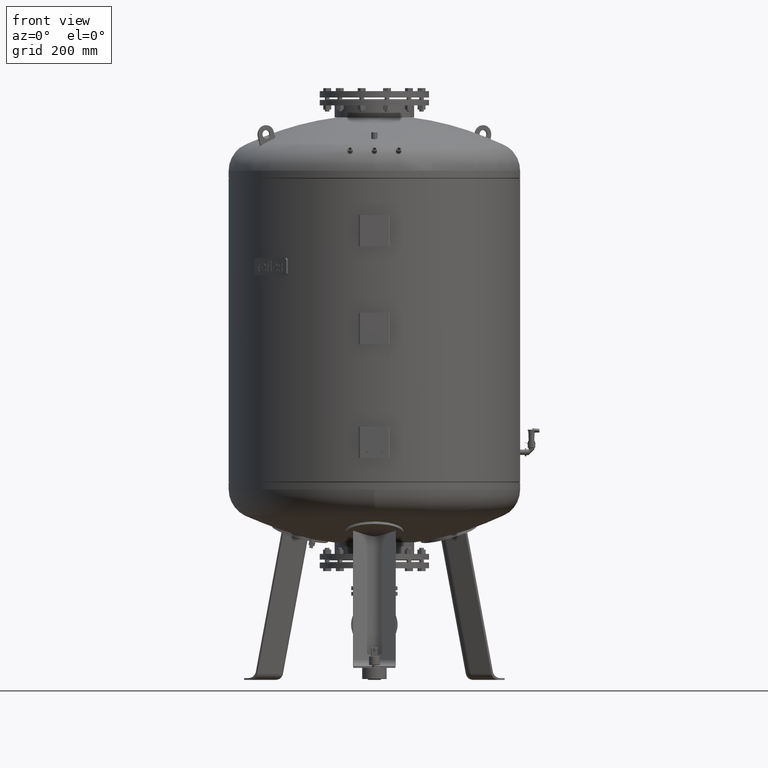
[diagram: clean part render]
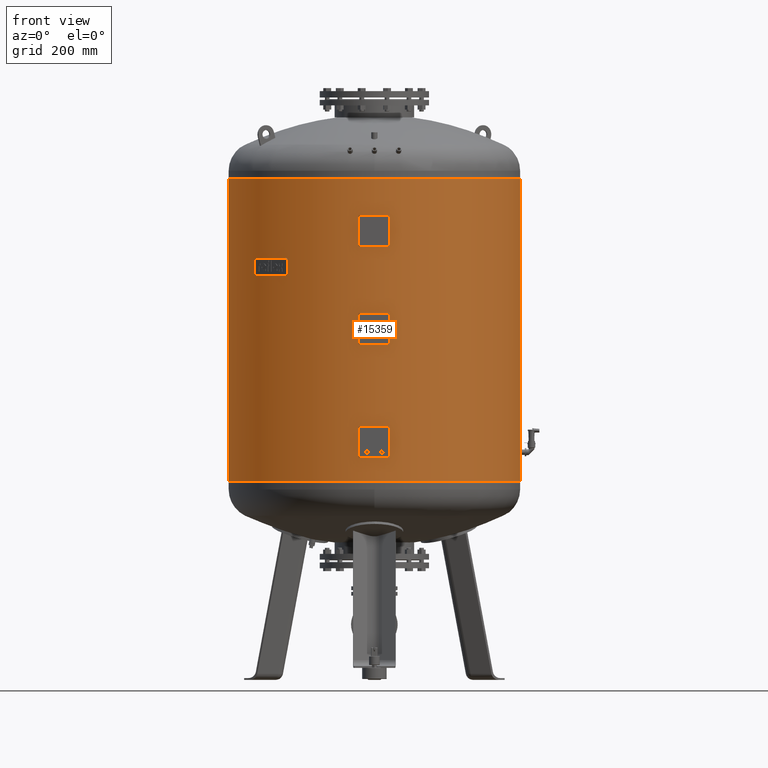
[diagram: same view with one face highlighted and labeled with its STEP entity id]
A machine part, front view. The second image highlights one B-rep face of the part: STEP entity #15359.
In plain terms, the highlighted cylindrical surface (partial cylindrical patch) has radius 500 mm, axis along (0, 0, 1).
Its self-contained STEP definition (entity closure, byte-faithful):
#15318=CARTESIAN_POINT('',(8.297411E-015,0.0,1452.250000000000000));
#15319=DIRECTION('',(3.104738E-017,0.0,1.0));
#15320=DIRECTION('',(1.0,0.0,0.0));
#15321=AXIS2_PLACEMENT_3D('',#15318,#15319,#15320);
#15322=CYLINDRICAL_SURFACE('',#15321,500.000000000000570);
#15323=CARTESIAN_POINT('',(500.000000000000570,0.0,1719.500000000000000));
#15324=VERTEX_POINT('',#15323);
#15325=CARTESIAN_POINT('',(499.999999999999890,0.0,680.500000000000000));
#15326=VERTEX_POINT('',#15325);
#15327=CARTESIAN_POINT('',(500.000000000000570,0.0,1719.500000000000000));
#15328=DIRECTION('',(0.0,0.0,-1.0));
#15329=VECTOR('',#15328,1039.0);
#15330=LINE('',#15327,#15329);
#15331=EDGE_CURVE('',#15324,#15326,#15330,.T.);
#15332=ORIENTED_EDGE('',*,*,#15331,.F.);
#15333=CARTESIAN_POINT('',(-500.000000000000570,-6.123032E-014,1719.500000000000000));
#15334=VERTEX_POINT('',#15333);
#15335=CARTESIAN_POINT('',(1.659482E-014,0.0,1719.500000000000000));
#15336=DIRECTION('',(0.0,0.0,1.0));
#15337=DIRECTION('',(1.0,0.0,0.0));
#15338=AXIS2_PLACEMENT_3D('',#15335,#15336,#15337);
#15339=CIRCLE('',#15338,500.000000000000570);
#15340=EDGE_CURVE('',#15334,#15324,#15339,.T.);
#15341=ORIENTED_EDGE('',*,*,#15340,.F.);
#15342=CARTESIAN_POINT('',(-499.999999999999890,-6.123032E-014,680.500000000000000));
#15343=VERTEX_POINT('',#15342);
#15344=CARTESIAN_POINT('',(-500.000000000000570,-6.123032E-014,1719.500000000000000));
#15345=DIRECTION('',(0.0,0.0,-1.0));
#15346=VECTOR('',#15345,1039.0);
#15347=LINE('',#15344,#15346);
#15348=EDGE_CURVE('',#15334,#15343,#15347,.T.);
#15349=ORIENTED_EDGE('',*,*,#15348,.T.);
#15350=CARTESIAN_POINT('',(-1.659482E-014,0.0,680.500000000000000));
#15351=DIRECTION('',(0.0,0.0,1.0));
#15352=DIRECTION('',(1.0,0.0,0.0));
#15353=AXIS2_PLACEMENT_3D('',#15350,#15351,#15352);
#15354=CIRCLE('',#15353,499.999999999999890);
#15355=EDGE_CURVE('',#15343,#15326,#15354,.T.);
#15356=ORIENTED_EDGE('',*,*,#15355,.T.);
#15357=EDGE_LOOP('',(#15332,#15341,#15349,#15356));
#15358=FACE_OUTER_BOUND('',#15357,.T.);
#15359=ADVANCED_FACE('',(#15358),#15322,.T.);